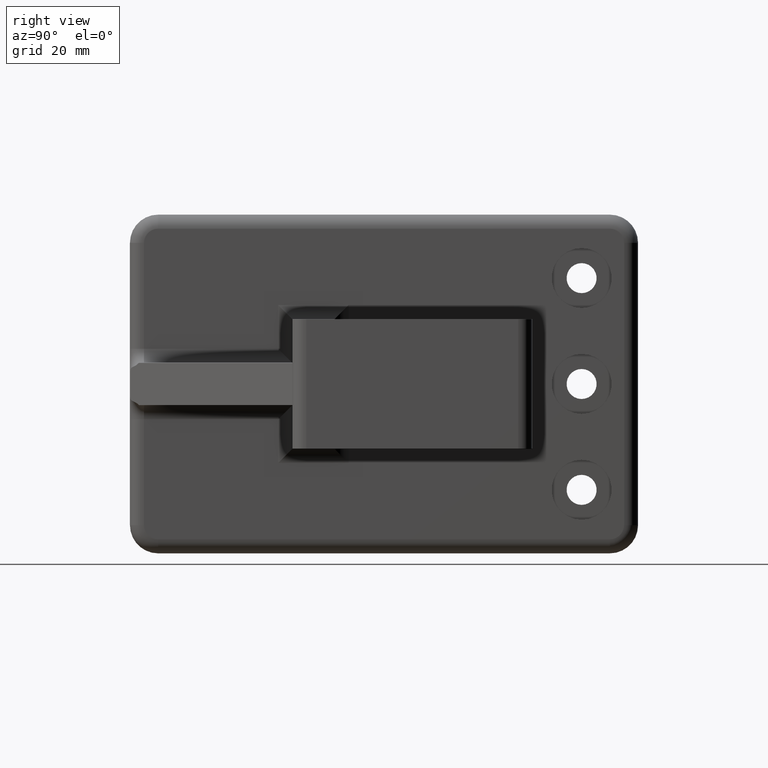
[diagram: clean part render]
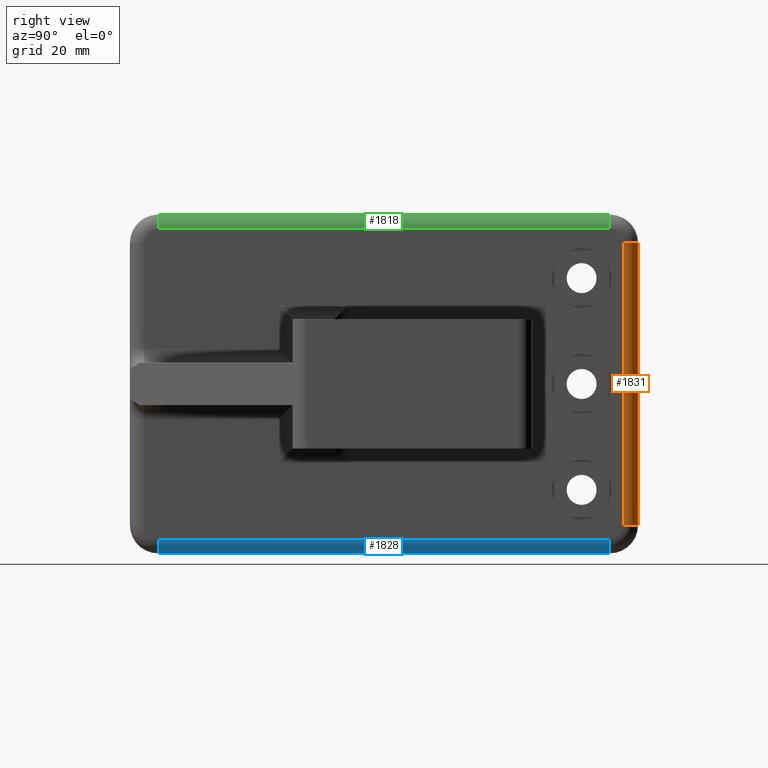
[diagram: same view with three faces highlighted in distinct colors, each labeled with its STEP entity id]
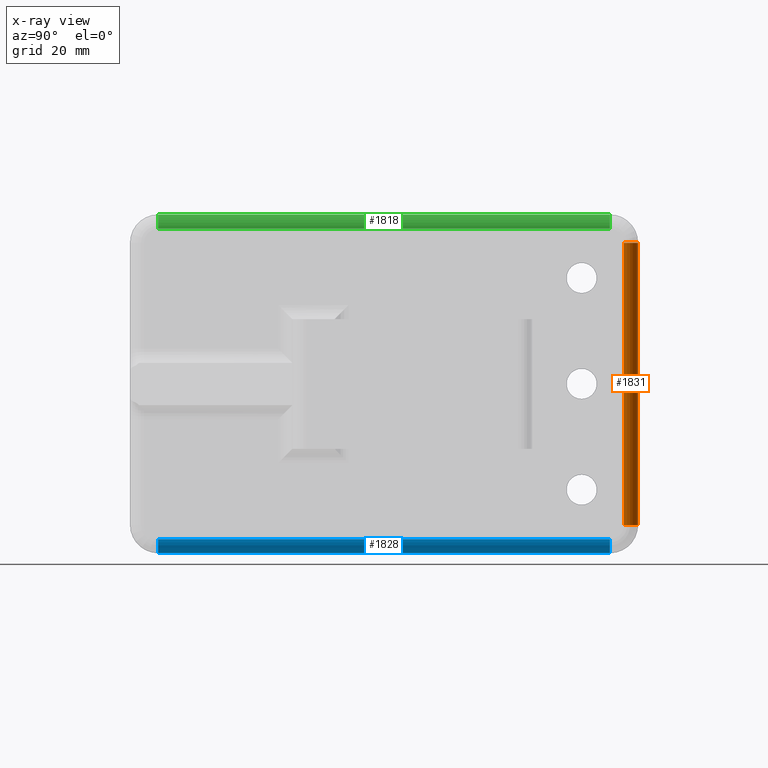
[diagram: x-ray of the same camera — body ghosted, the three highlighted faces saturated]
A machine part, right view with three faces highlighted in distinct colors.
The next image is the same camera in x-ray (body ghosted, the three faces saturated) — at least one of them is partly hidden behind the body in this view.
Their STEP definitions:

[orange] entity #1831 — the highlighted cylindrical surface (edge-blend (fillet) strip) has radius 3.175 mm, axis along (0, 0, 1).
#60 = VERTEX_POINT ( 'NONE', #1205 ) ;
#64 = VERTEX_POINT ( 'NONE', #1164 ) ;
#94 = VERTEX_POINT ( 'NONE', #1175 ) ;
#96 = VERTEX_POINT ( 'NONE', #1176 ) ;
#240 = AXIS2_PLACEMENT_3D ( 'NONE', #1745, #1739, #1743 ) ;
#372 = FACE_OUTER_BOUND ( 'NONE', #406, .T. ) ;
#373 = CYLINDRICAL_SURFACE ( 'NONE', #240, 0.1250000000000000300 ) ;
#406 = EDGE_LOOP ( 'NONE', ( #1335, #1261, #1260, #1259 ) ) ;
#544 = CARTESIAN_POINT ( 'NONE',  ( 0.8389936941865192600, 4.916996558212013600, -1.250000000000000000 ) ) ;
#546 = DIRECTION ( 'NONE',  ( 0.0000000000000000000, 0.0000000000000000000, 1.000000000000000000 ) ) ;
#547 = DIRECTION ( 'NONE',  ( 1.000000000000000000, 0.0000000000000000000, 0.0000000000000000000 ) ) ;
#570 = DIRECTION ( 'NONE',  ( 0.0000000000000000000, 0.0000000000000000000, -1.000000000000000000 ) ) ;
#861 = EDGE_CURVE ( 'NONE', #94, #60, #1041, .T. ) ;
#1041 = CIRCLE ( 'NONE', #1875, 0.1250000000000000300 ) ;
#1069 = CARTESIAN_POINT ( 'NONE',  ( 0.8389936941865192600, 5.041996558212013600, -1.250000000000000000 ) ) ;
#1138 = EDGE_CURVE ( 'NONE', #96, #64, #1300, .T. ) ;
#1164 = CARTESIAN_POINT ( 'NONE',  ( 0.8389936941865192600, 5.041996558212013600, -1.250000000000000000 ) ) ;
#1175 = CARTESIAN_POINT ( 'NONE',  ( 0.9639936941865192600, 4.916996558212013600, 1.250000000000000000 ) ) ;
#1176 = CARTESIAN_POINT ( 'NONE',  ( 0.9639936941865192600, 4.916996558212013600, -1.250000000000000000 ) ) ;
#1205 = CARTESIAN_POINT ( 'NONE',  ( 0.8389936941865192600, 5.041996558212013600, 1.250000000000000000 ) ) ;
#1259 = ORIENTED_EDGE ( 'NONE', *, *, #1276, .F. ) ;
#1260 = ORIENTED_EDGE ( 'NONE', *, *, #861, .F. ) ;
#1261 = ORIENTED_EDGE ( 'NONE', *, *, #1269, .F. ) ;
#1269 = EDGE_CURVE ( 'NONE', #60, #64, #1304, .T. ) ;
#1276 = EDGE_CURVE ( 'NONE', #96, #94, #1301, .T. ) ;
#1300 = CIRCLE ( 'NONE', #1893, 0.1250000000000000300 ) ;
#1301 = LINE ( 'NONE', #1647, #1349 ) ;
#1304 = LINE ( 'NONE', #1069, #1310 ) ;
#1310 = VECTOR ( 'NONE', #570, 39.37007874015748100 ) ;
#1335 = ORIENTED_EDGE ( 'NONE', *, *, #1138, .T. ) ;
#1349 = VECTOR ( 'NONE', #1648, 39.37007874015748100 ) ;
#1454 = CARTESIAN_POINT ( 'NONE',  ( 0.8389936941865192600, 4.916996558212013600, 1.250000000000000000 ) ) ;
#1455 = DIRECTION ( 'NONE',  ( 0.0000000000000000000, 0.0000000000000000000, 1.000000000000000000 ) ) ;
#1456 = DIRECTION ( 'NONE',  ( 1.000000000000000000, 0.0000000000000000000, 0.0000000000000000000 ) ) ;
#1647 = CARTESIAN_POINT ( 'NONE',  ( 0.9639936941865192600, 4.916996558212013600, 1.250000000000000000 ) ) ;
#1648 = DIRECTION ( 'NONE',  ( -0.0000000000000000000, -0.0000000000000000000, 1.000000000000000000 ) ) ;
#1739 = DIRECTION ( 'NONE',  ( 0.0000000000000000000, 0.0000000000000000000, 1.000000000000000000 ) ) ;
#1743 = DIRECTION ( 'NONE',  ( 1.000000000000000000, 0.0000000000000000000, 0.0000000000000000000 ) ) ;
#1745 = CARTESIAN_POINT ( 'NONE',  ( 0.8389936941865192600, 4.916996558212013600, -1.250000000000000000 ) ) ;
#1831 = ADVANCED_FACE ( 'NONE', ( #372 ), #373, .T. ) ;
#1875 = AXIS2_PLACEMENT_3D ( 'NONE', #1454, #1455, #1456 ) ;
#1893 = AXIS2_PLACEMENT_3D ( 'NONE', #544, #546, #547 ) ;

[blue] entity #1828 — the highlighted cylindrical surface (edge-blend (fillet) strip) has radius 3.175 mm, axis along (0, 1, -0).
#37 = EDGE_CURVE ( 'NONE', #131, #63, #1248, .T. ) ;
#63 = VERTEX_POINT ( 'NONE', #1163 ) ;
#92 = VERTEX_POINT ( 'NONE', #1174 ) ;
#131 = VERTEX_POINT ( 'NONE', #636 ) ;
#172 = VERTEX_POINT ( 'NONE', #292 ) ;
#239 = AXIS2_PLACEMENT_3D ( 'NONE', #1736, #1735, #1730 ) ;
#248 = CARTESIAN_POINT ( 'NONE',  ( 0.8389936941865192600, 4.791996558212013600, -1.375000000000000400 ) ) ;
#249 = DIRECTION ( 'NONE',  ( -0.0000000000000000000, 1.000000000000000000, 0.0000000000000000000 ) ) ;
#250 = DIRECTION ( 'NONE',  ( 0.0000000000000000000, 0.0000000000000000000, 1.000000000000000000 ) ) ;
#281 = DIRECTION ( 'NONE',  ( 0.0000000000000000000, 0.0000000000000000000, 1.000000000000000000 ) ) ;
#292 = CARTESIAN_POINT ( 'NONE',  ( 0.8389936941865179200, 0.7919965582120136500, -1.499999999999999800 ) ) ;
#362 = FACE_OUTER_BOUND ( 'NONE', #404, .T. ) ;
#370 = CYLINDRICAL_SURFACE ( 'NONE', #239, 0.1250000000000000300 ) ;
#404 = EDGE_LOOP ( 'NONE', ( #1343, #1342, #1341, #1340 ) ) ;
#607 = CARTESIAN_POINT ( 'NONE',  ( 0.8389936941865177000, 0.7919965582120136500, -1.499999999999999800 ) ) ;
#608 = DIRECTION ( 'NONE',  ( -3.642463991552353400E-016, -1.000000000000000000, 1.365923996832131900E-016 ) ) ;
#625 = CARTESIAN_POINT ( 'NONE',  ( 0.8389936941865177000, 0.7919965582120136500, -1.375000000000000000 ) ) ;
#630 = DIRECTION ( 'NONE',  ( -0.0000000000000000000, 1.000000000000000000, 0.0000000000000000000 ) ) ;
#636 = CARTESIAN_POINT ( 'NONE',  ( 0.9639936941865192600, 4.791996558212013600, -1.375000000000000400 ) ) ;
#689 = LINE ( 'NONE', #607, #690 ) ;
#690 = VECTOR ( 'NONE', #608, 39.37007874015748100 ) ;
#701 = CIRCLE ( 'NONE', #1880, 0.1249999999999999000 ) ;
#837 = AXIS2_PLACEMENT_3D ( 'NONE', #248, #249, #250 ) ;
#867 = EDGE_CURVE ( 'NONE', #63, #172, #689, .T. ) ;
#876 = EDGE_CURVE ( 'NONE', #92, #172, #701, .T. ) ;
#1163 = CARTESIAN_POINT ( 'NONE',  ( 0.8389936941865192600, 4.791996558212013600, -1.500000000000000400 ) ) ;
#1174 = CARTESIAN_POINT ( 'NONE',  ( 0.9639936941865178100, 0.7919965582120136500, -1.375000000000000000 ) ) ;
#1248 = CIRCLE ( 'NONE', #837, 0.1249999999999999000 ) ;
#1274 = EDGE_CURVE ( 'NONE', #92, #131, #1346, .T. ) ;
#1340 = ORIENTED_EDGE ( 'NONE', *, *, #1274, .F. ) ;
#1341 = ORIENTED_EDGE ( 'NONE', *, *, #37, .F. ) ;
#1342 = ORIENTED_EDGE ( 'NONE', *, *, #867, .F. ) ;
#1343 = ORIENTED_EDGE ( 'NONE', *, *, #876, .T. ) ;
#1346 = LINE ( 'NONE', #1642, #1352 ) ;
#1352 = VECTOR ( 'NONE', #1643, 39.37007874015748100 ) ;
#1642 = CARTESIAN_POINT ( 'NONE',  ( 0.9639936941865192600, 4.791996558212013600, -1.375000000000000400 ) ) ;
#1643 = DIRECTION ( 'NONE',  ( 3.642463991552351500E-016, 1.000000000000000000, -1.365923996832131900E-016 ) ) ;
#1730 = DIRECTION ( 'NONE',  ( -1.000000000000000000, 0.0000000000000000000, 0.0000000000000000000 ) ) ;
#1735 = DIRECTION ( 'NONE',  ( 3.642463991552352400E-016, 1.000000000000000000, -1.365923996832131900E-016 ) ) ;
#1736 = CARTESIAN_POINT ( 'NONE',  ( 0.8389936941865192600, 4.791996558212013600, -1.375000000000000400 ) ) ;
#1828 = ADVANCED_FACE ( 'NONE', ( #362 ), #370, .T. ) ;
#1880 = AXIS2_PLACEMENT_3D ( 'NONE', #625, #630, #281 ) ;

[green] entity #1818 — the highlighted cylindrical surface (edge-blend (fillet) strip) has radius 3.175 mm, axis along (-0, -1, 0).
#33 = VERTEX_POINT ( 'NONE', #683 ) ;
#104 = EDGE_CURVE ( 'NONE', #132, #134, #200, .T. ) ;
#132 = VERTEX_POINT ( 'NONE', #637 ) ;
#134 = VERTEX_POINT ( 'NONE', #639 ) ;
#161 = VERTEX_POINT ( 'NONE', #648 ) ;
#200 = LINE ( 'NONE', #1145, #204 ) ;
#204 = VECTOR ( 'NONE', #1148, 39.37007874015748100 ) ;
#228 = AXIS2_PLACEMENT_3D ( 'NONE', #478, #473, #476 ) ;
#349 = FACE_OUTER_BOUND ( 'NONE', #409, .T. ) ;
#351 = CYLINDRICAL_SURFACE ( 'NONE', #228, 0.1250000000000000300 ) ;
#409 = EDGE_LOOP ( 'NONE', ( #1184, #1183, #1182, #1181 ) ) ;
#473 = DIRECTION ( 'NONE',  ( -3.642463991552352400E-016, -1.000000000000000000, 6.829619984160659300E-017 ) ) ;
#476 = DIRECTION ( 'NONE',  ( 1.000000000000000000, 0.0000000000000000000, 0.0000000000000000000 ) ) ;
#478 = CARTESIAN_POINT ( 'NONE',  ( 0.8389936941865192600, 4.791996558212013600, 1.375000000000000400 ) ) ;
#596 = DIRECTION ( 'NONE',  ( 0.0000000000000000000, -1.000000000000000000, 0.0000000000000000000 ) ) ;
#597 = DIRECTION ( 'NONE',  ( 0.0000000000000000000, 0.0000000000000000000, -1.000000000000000000 ) ) ;
#601 = CARTESIAN_POINT ( 'NONE',  ( 0.8389936941865177000, 0.7919965582120136500, 1.375000000000000700 ) ) ;
#602 = DIRECTION ( 'NONE',  ( 0.0000000000000000000, -1.000000000000000000, 0.0000000000000000000 ) ) ;
#603 = DIRECTION ( 'NONE',  ( 0.0000000000000000000, 0.0000000000000000000, -1.000000000000000000 ) ) ;
#637 = CARTESIAN_POINT ( 'NONE',  ( 0.8389936941865175900, 0.7919965582120136500, 1.500000000000000700 ) ) ;
#639 = CARTESIAN_POINT ( 'NONE',  ( 0.8389936941865192600, 4.791996558212013600, 1.500000000000000400 ) ) ;
#648 = CARTESIAN_POINT ( 'NONE',  ( 0.9639936941865192600, 4.791996558212013600, 1.375000000000000400 ) ) ;
#683 = CARTESIAN_POINT ( 'NONE',  ( 0.9639936941865178100, 0.7919965582120136500, 1.375000000000000700 ) ) ;
#688 = CIRCLE ( 'NONE', #1876, 0.1249999999999999000 ) ;
#863 = EDGE_CURVE ( 'NONE', #161, #134, #1043, .T. ) ;
#865 = EDGE_CURVE ( 'NONE', #33, #132, #688, .T. ) ;
#1043 = CIRCLE ( 'NONE', #1872, 0.1249999999999999000 ) ;
#1145 = CARTESIAN_POINT ( 'NONE',  ( 0.8389936941865192600, 4.791996558212013600, 1.500000000000000400 ) ) ;
#1148 = DIRECTION ( 'NONE',  ( 3.642463991552353400E-016, 1.000000000000000000, -6.829619984160659300E-017 ) ) ;
#1181 = ORIENTED_EDGE ( 'NONE', *, *, #1278, .F. ) ;
#1182 = ORIENTED_EDGE ( 'NONE', *, *, #865, .F. ) ;
#1183 = ORIENTED_EDGE ( 'NONE', *, *, #104, .F. ) ;
#1184 = ORIENTED_EDGE ( 'NONE', *, *, #863, .T. ) ;
#1278 = EDGE_CURVE ( 'NONE', #161, #33, #1347, .T. ) ;
#1347 = LINE ( 'NONE', #1653, #1358 ) ;
#1358 = VECTOR ( 'NONE', #1654, 39.37007874015748100 ) ;
#1460 = CARTESIAN_POINT ( 'NONE',  ( 0.8389936941865192600, 4.791996558212013600, 1.375000000000000400 ) ) ;
#1653 = CARTESIAN_POINT ( 'NONE',  ( 0.9639936941865178100, 0.7919965582120136500, 1.375000000000000700 ) ) ;
#1654 = DIRECTION ( 'NONE',  ( -3.642463991552351500E-016, -1.000000000000000000, 6.829619984160659300E-017 ) ) ;
#1818 = ADVANCED_FACE ( 'NONE', ( #349 ), #351, .T. ) ;
#1872 = AXIS2_PLACEMENT_3D ( 'NONE', #1460, #596, #597 ) ;
#1876 = AXIS2_PLACEMENT_3D ( 'NONE', #601, #602, #603 ) ;